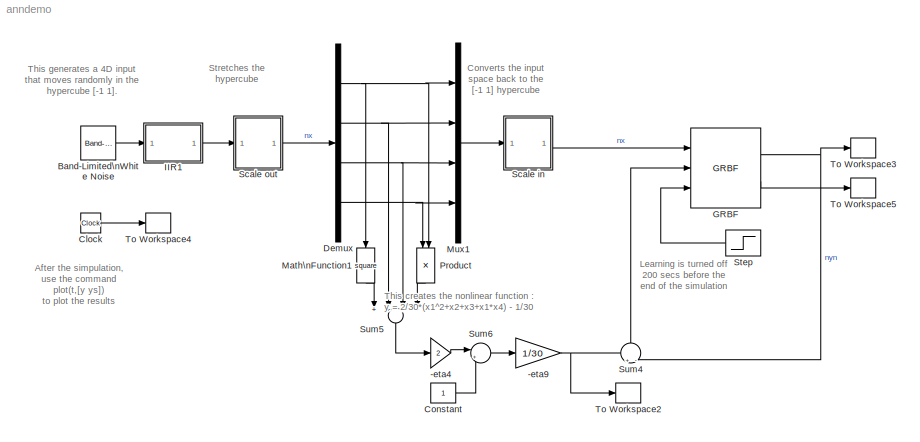
MODEL anndemo
KIND model
BLOCK [Gain] -eta4
  Gain = 2
  SID = 1
BLOCK [Gain] -eta9
  Gain = 1/30
  SID = 2
BLOCK [Reference] Band-Limited\nWhite Noise  REF=simulink3/Sources/Band-Limited\nWhite Noise
  Cov = [1 1 1 1]
  Ports = [0, 1]
  SID = 3
  SourceBlock = simulink3/Sources/Band-Limited\nWhite Noise
  SourceProductBaseCode = SL
  SourceProductName = Simulink
  SourceType = Continuous White Noise.
  Ts = 0.05
  seed = 1:4
BLOCK [Clock] Clock
  SID = 4
BLOCK [Constant] Constant
  SID = 5
BLOCK [Demux] Demux
  Ports = [1, 4]
  SID = 6
BLOCK [Reference] GRBF  REF=ann/GRBF  (lib defined in slx_5ee77b6aec32)
  Ports = [3, 2]
  SID = 38
  SourceBlock = ann/GRBF
  SourceType = GRBF NN
  T = 0.05
  dim = [4 1]
  e1 = 0.2
  e2 = [0.3  0.2  0.999]
  e3 = [0 0.5]
  eta = [1 1 1]*1e-3
  gam = [1 1 1]*1e-6
  lim = [1 1 1]*1e6
  nwrap = [100     1           10               1]
  x0 = zeros((4+2)*100+2,1)
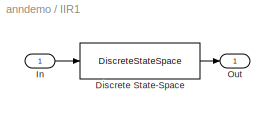
BLOCK [SubSystem] IIR1
  Ports = [1, 1]
  RequestExecContextInheritance = off
  SID = 7
BLOCK [DiscreteStateSpace] IIR1/Discrete State-Space
  A = A
  B = B
  C = C
  D = D
  InitialCondition = x0
  SID = 9
  SampleTime = T
BLOCK [Inport] IIR1/In
  IconDisplay = Port number
  SID = 8
BLOCK [Outport] IIR1/Out
  IconDisplay = Port number
  SID = 10
BLOCK [Math] Math\nFunction1
  Operator = square
  Ports = [1, 1]
  SID = 11
BLOCK [Mux] Mux1
  DisplayOption = bar
  Ports = [4, 1]
  SID = 12
BLOCK [Product] Product
  Ports = [2, 1]
  SID = 13
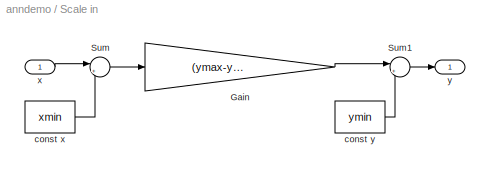
BLOCK [SubSystem] Scale in
  Ports = [1, 1]
  RequestExecContextInheritance = off
  SID = 14
BLOCK [Gain] Scale in/Gain
  Gain = (ymax-ymin)./(xmax-xmin)
  SID = 16
BLOCK [Sum] Scale in/Sum
  IconShape = round
  Inputs = |+-
  Ports = [2, 1]
  SID = 17
BLOCK [Sum] Scale in/Sum1
  IconShape = round
  Inputs = |++
  Ports = [2, 1]
  SID = 18
BLOCK [Constant] Scale in/const x
  SID = 19
  Value = xmin
BLOCK [Constant] Scale in/const y
  SID = 20
  Value = ymin
BLOCK [Inport] Scale in/x
  IconDisplay = Port number
  SID = 15
BLOCK [Outport] Scale in/y
  IconDisplay = Port number
  SID = 21
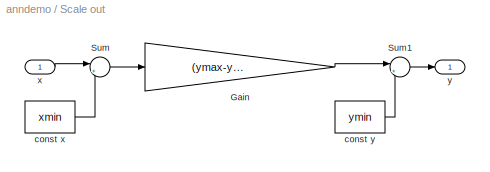
BLOCK [SubSystem] Scale out
  Ports = [1, 1]
  RequestExecContextInheritance = off
  SID = 22
BLOCK [Gain] Scale out/Gain
  Gain = (ymax-ymin)./(xmax-xmin)
  SID = 24
BLOCK [Sum] Scale out/Sum
  IconShape = round
  Inputs = |+-
  Ports = [2, 1]
  SID = 25
BLOCK [Sum] Scale out/Sum1
  IconShape = round
  Inputs = |++
  Ports = [2, 1]
  SID = 26
BLOCK [Constant] Scale out/const x
  SID = 27
  Value = xmin
BLOCK [Constant] Scale out/const y
  SID = 28
  Value = ymin
BLOCK [Inport] Scale out/x
  IconDisplay = Port number
  SID = 23
BLOCK [Outport] Scale out/y
  IconDisplay = Port number
  SID = 29
BLOCK [Step] Step
  After = 0
  Before = 1
  SID = 30
  SampleTime = 0.05
  Time = 800
BLOCK [Sum] Sum4
  IconShape = round
  Inputs = +|-
  Ports = [2, 1]
  SID = 31
BLOCK [Sum] Sum5
  Inputs = ++++
  Ports = [4, 1]
  SID = 32
BLOCK [Sum] Sum6
  IconShape = round
  Inputs = |+-
  Ports = [2, 1]
  SID = 33
BLOCK [ToWorkspace] To Workspace2
  Ports = [1]
  SID = 34
  SampleTime = -1
  VariableName = y
BLOCK [ToWorkspace] To Workspace3
  Ports = [1]
  SID = 35
  SampleTime = 0.05
  VariableName = ys
BLOCK [ToWorkspace] To Workspace4
  Ports = [1]
  SID = 36
  SampleTime = 0.05
  VariableName = t
BLOCK [ToWorkspace] To Workspace5
  Ports = [1]
  SID = 37
  SampleTime = 0.05
  VariableName = Wc
ANNOTATION (root): After the simpulation,\nuse the command \nplot(t,[y ys]) \nto plot the results
ANNOTATION (root): Converts the input \nspace back to the \n[-1 1] hypercube
ANNOTATION (root): Learning is turned off\n200 secs before the \nend of the simulation
ANNOTATION (root): Stretches the \nhypercube
ANNOTATION (root): This creates the nonlinear function : \ny = 2/30*(x1^2+x2+x3+x1*x4) - 1/30
ANNOTATION (root): This generates a 4D input \nthat moves randomly in the \nhypercube [-1 1].
LINE -eta4:1 -> Sum6:1
NET -eta9:1 -> Sum4:1, To Workspace2:1
LINE Band-Limited\nWhite Noise:1 -> IIR1:1
LINE Clock:1 -> To Workspace4:1
LINE Constant:1 -> Sum6:2
NET Demux:1 -> Math\nFunction1:1, Mux1:1, Product:2
NET Demux:2 -> Mux1:2, Sum5:2
NET Demux:3 -> Mux1:3, Sum5:3
NET Demux:4 -> Mux1:4, Product:1
NET GRBF:1 -> Sum4:2, To Workspace3:1
LINE GRBF:2 -> To Workspace5:1
LINE IIR1/Discrete State-Space:1 -> IIR1/Out:1
LINE IIR1/In:1 -> IIR1/Discrete State-Space:1
LINE IIR1:1 -> Scale out:1
LINE Math\nFunction1:1 -> Sum5:1
LINE Mux1:1 -> Scale in:1
LINE Product:1 -> Sum5:4
LINE Scale in/Gain:1 -> Scale in/Sum1:1
LINE Scale in/Sum1:1 -> Scale in/y:1
LINE Scale in/Sum:1 -> Scale in/Gain:1
LINE Scale in/const x:1 -> Scale in/Sum:2
LINE Scale in/const y:1 -> Scale in/Sum1:2
LINE Scale in/x:1 -> Scale in/Sum:1
LINE Scale in:1 -> GRBF:1
LINE Scale out/Gain:1 -> Scale out/Sum1:1
LINE Scale out/Sum1:1 -> Scale out/y:1
LINE Scale out/Sum:1 -> Scale out/Gain:1
LINE Scale out/const x:1 -> Scale out/Sum:2
LINE Scale out/const y:1 -> Scale out/Sum1:2
LINE Scale out/x:1 -> Scale out/Sum:1
LINE Scale out:1 -> Demux:1
LINE Step:1 -> GRBF:3
LINE Sum4:1 -> GRBF:2
LINE Sum5:1 -> -eta4:1
LINE Sum6:1 -> -eta9:1
note: NET lines group one-source signal fan-out (src -> all destinations, sorted); 1:1 wires keep LINE
